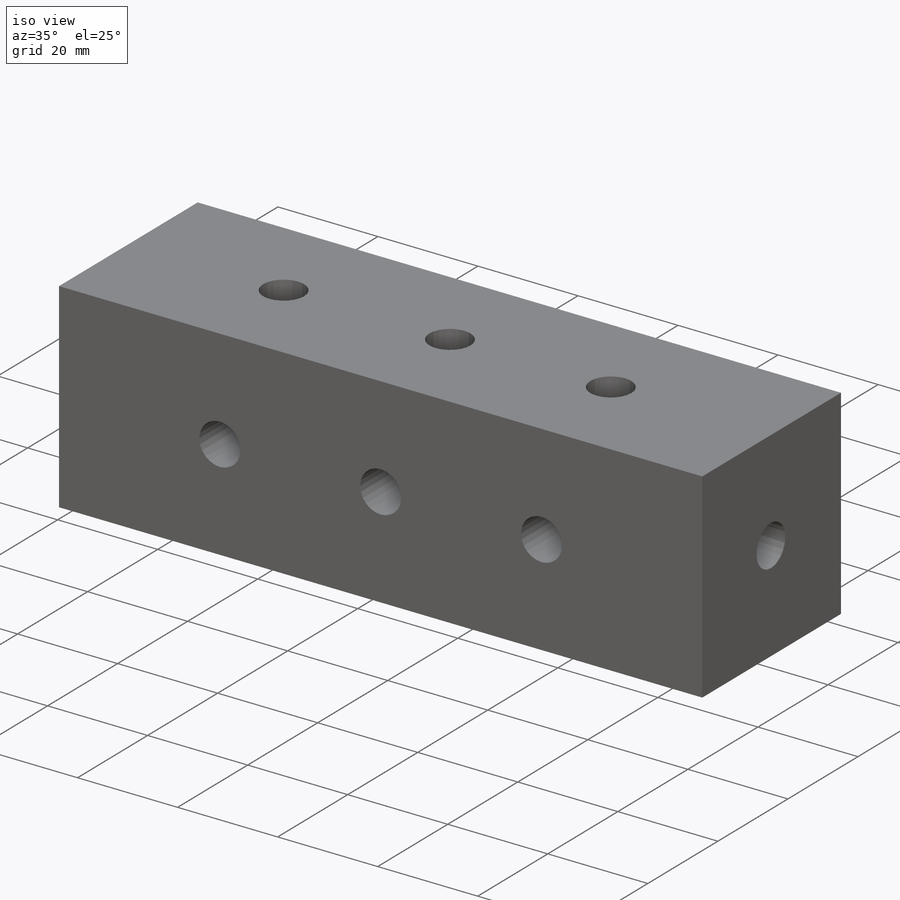
[diagram: iso view]
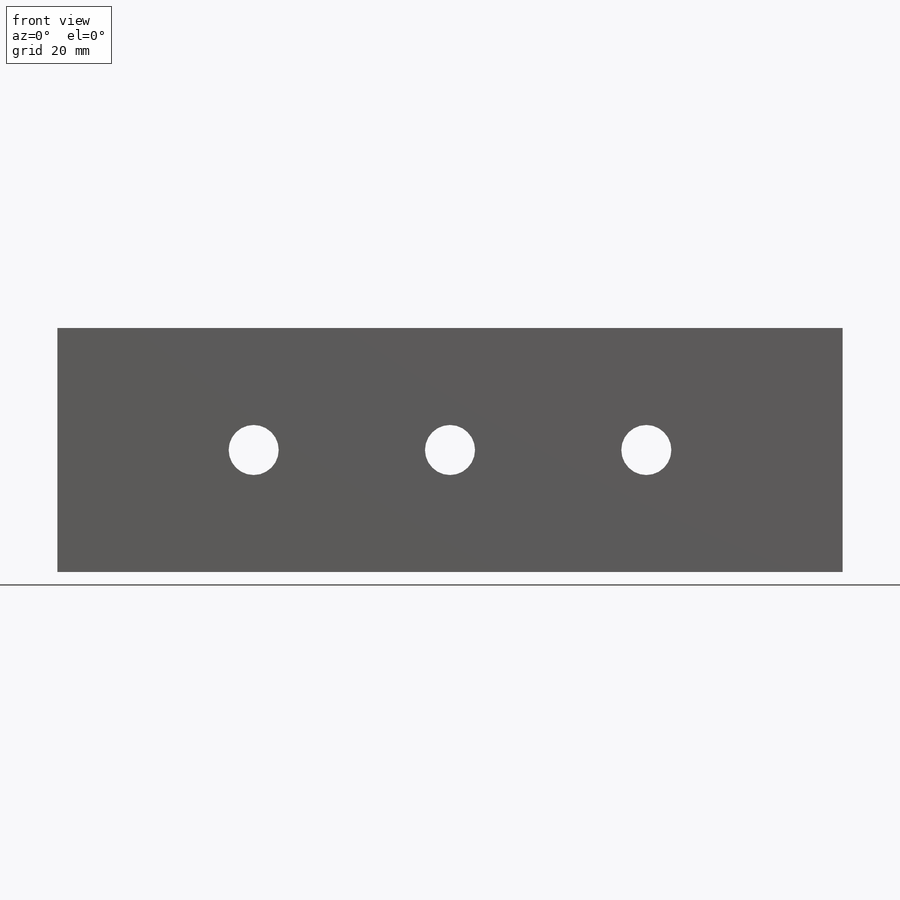
[diagram: front view]
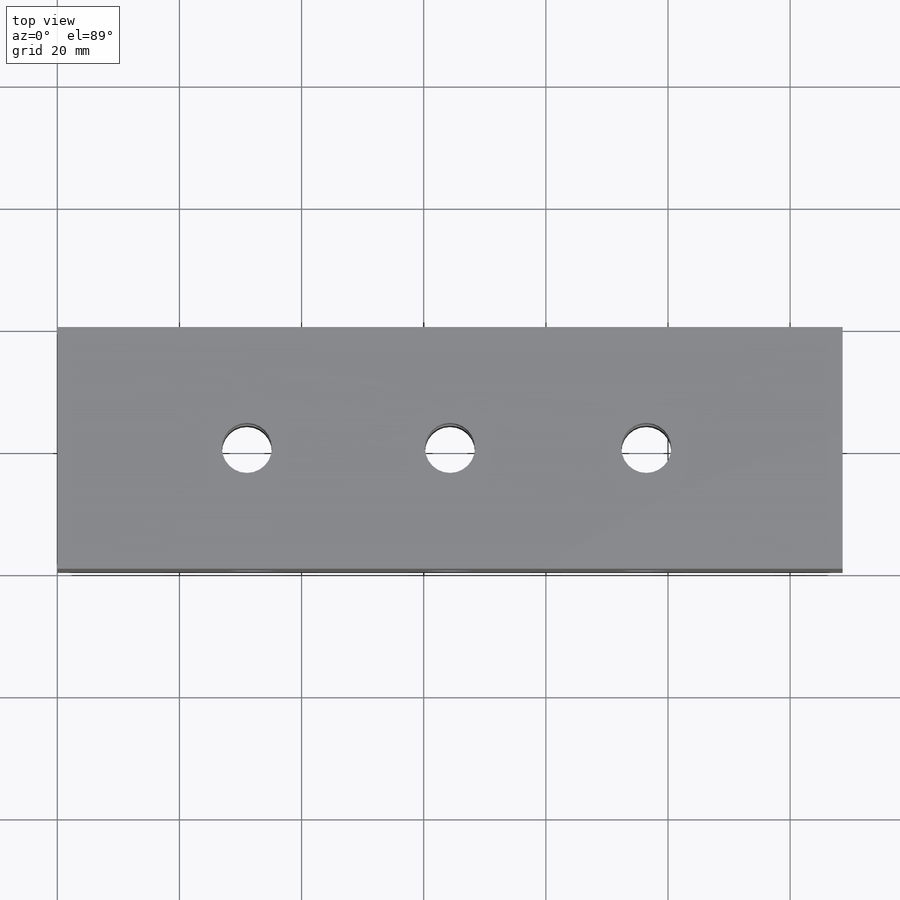
[diagram: top view]
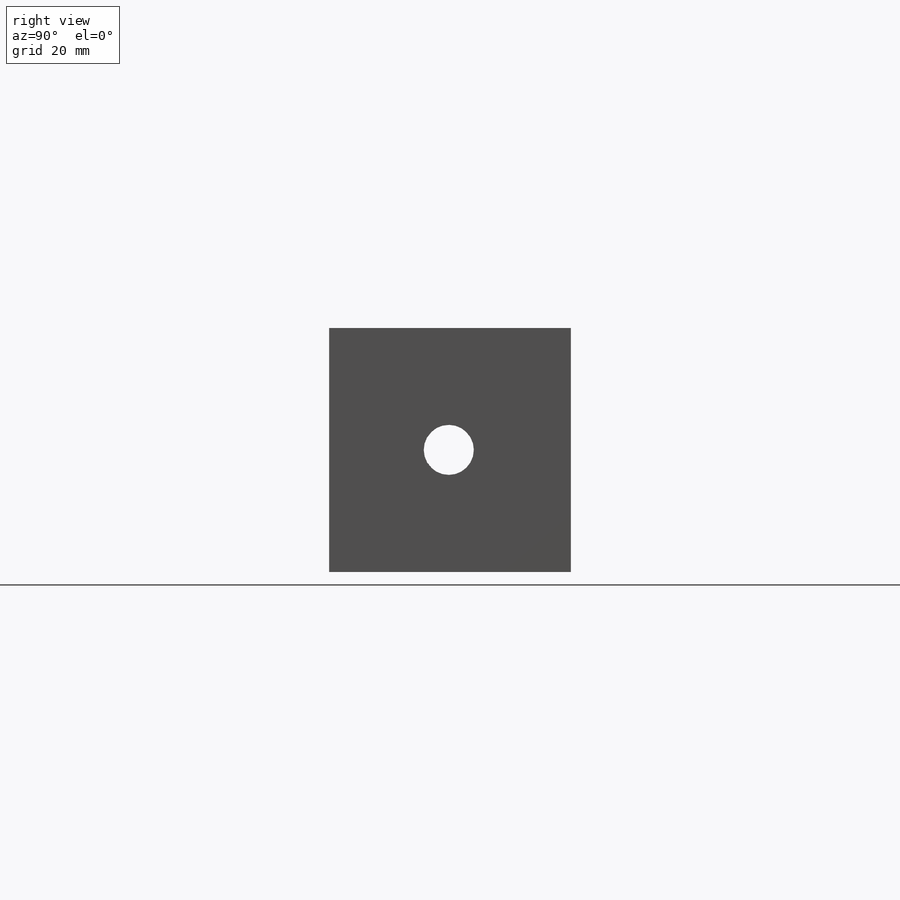
[diagram: right view]
SOLIDWORKS PART (.sldprt)
format: sldprt  version: not decoded by parser v0  size: 224,256 bytes
history: native  units: mm
features: sketch x4, plane x3, cut_extrude x3, material x1, extrude x1 (+10 scaffold rows collapsed)
feature tree (22):
  scaffold x10  (default folders/planes/origin — collapsed)
  material  "Material <não especificado>"
  plane  "Plano frontal"
  plane  "Plano superior"
  plane  "Plano direito"
  sketch  "Esboço1"  dims[D1=128.6mm D2=39.96mm]
  extrude  "Ressalto-extrusão1"  Depth=39.6mm
  sketch  "Esboço2"  dims[D1=8.2mm D2=8.2mm D3=8.2mm]
  cut_extrude  "Corte-extrusão1"  Depth=49mm
  sketch  "Esboço3"  dims[7.8=8.2mm]
  cut_extrude  "Corte-extrusão2"  Depth=157mm
  sketch  "Esboço4"  dims[D1=8.2mm D2=8.2mm D3=8.2mm]
  cut_extrude  "Corte-extrusão3"  Depth=64mm
decode coverage: 8 of 8 modeling features carry decoded parameters
note: suppression state not decoded; provenance and decode notes live in map.json
